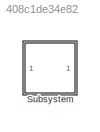
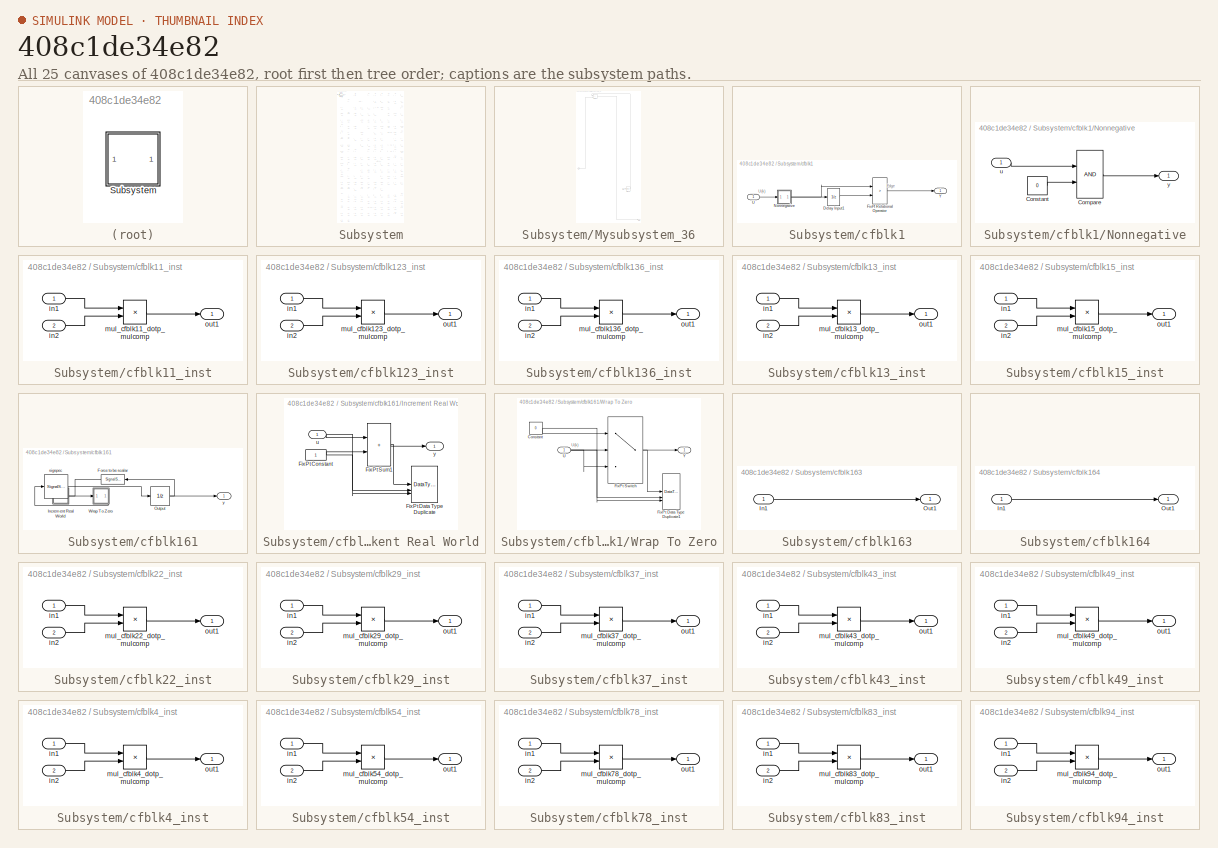
[diagram: thumbnail index - all 25 canvases of the model, root first then tree order]
MODEL slx_408c1de34e82
KIND model
CONFIG AbsTol = auto
CONFIG EnableMultiTasking = off
CONFIG FixedStep = auto
CONFIG MaxStep = auto
CONFIG MinStep = auto
CONFIG RelTol = 1e-3
CONFIG SampleTimeConstraint = Unconstrained
CONFIG SolverName = VariableStepAuto
CONFIG StartTime = 0.0
CONFIG StopTime = 10.0
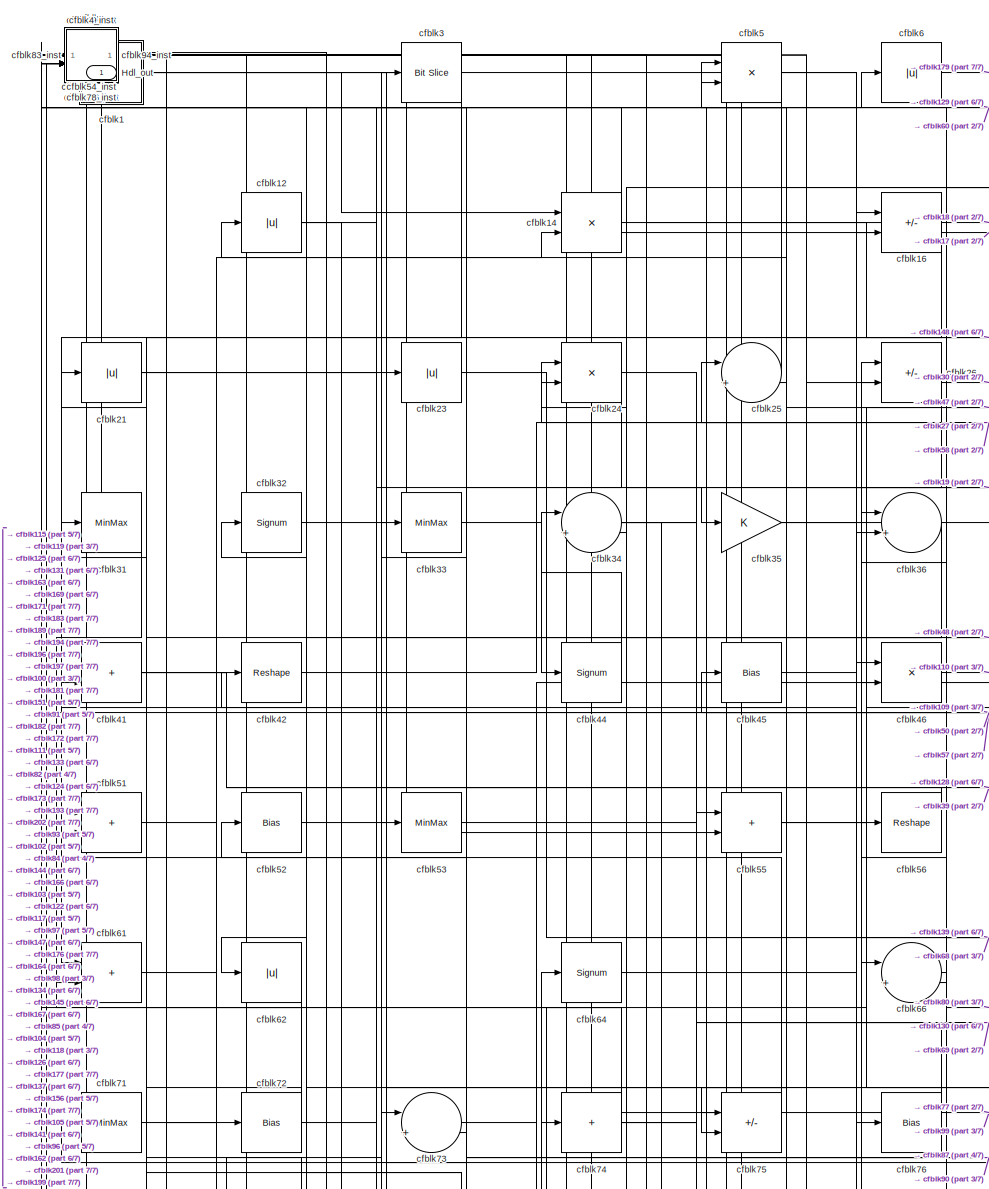
[diagram: Subsystem - part 1/7, top left region]
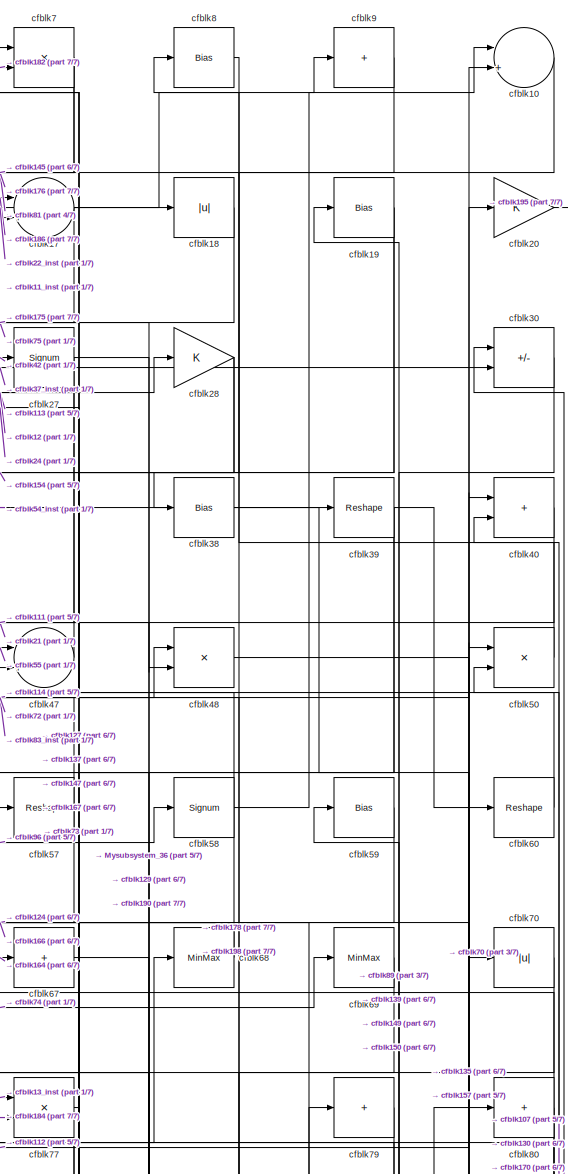
[diagram: Subsystem - part 2/7, top right region]
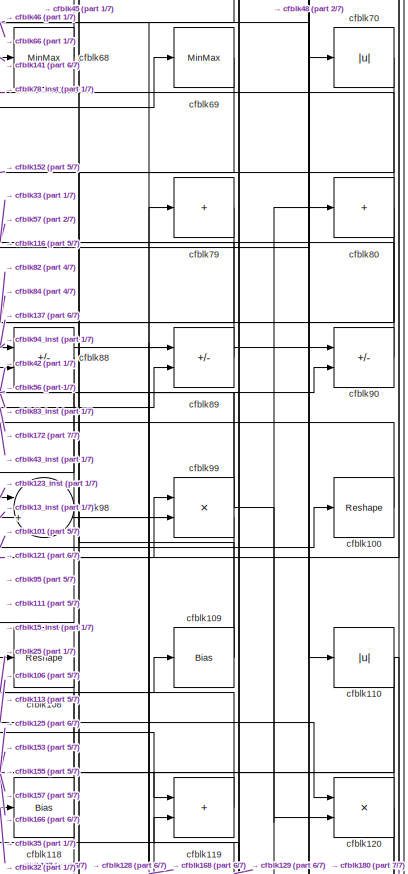
[diagram: Subsystem - part 3/7, middle right region]
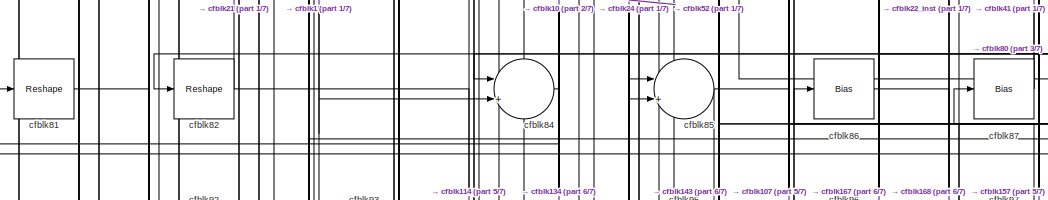
[diagram: Subsystem - part 4/7, central region]
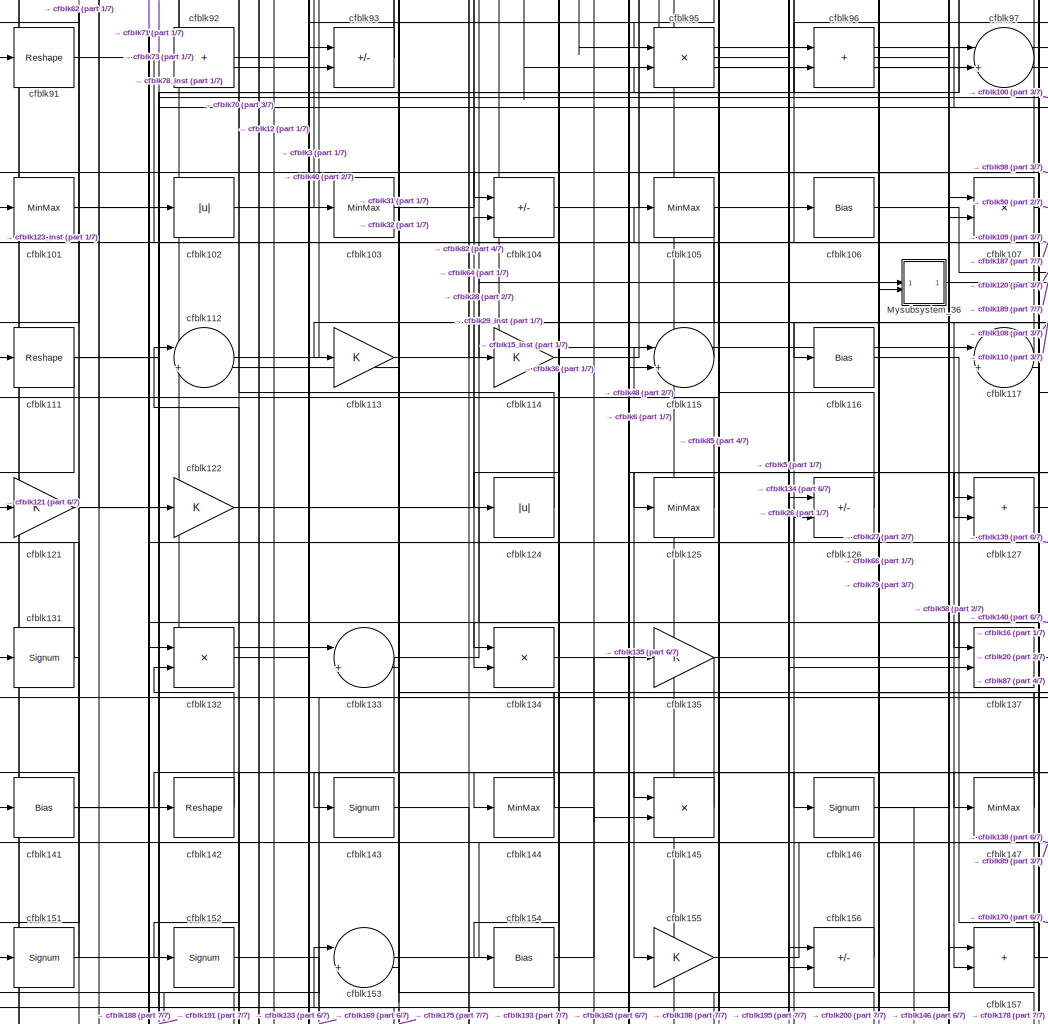
[diagram: Subsystem - part 5/7, central region]
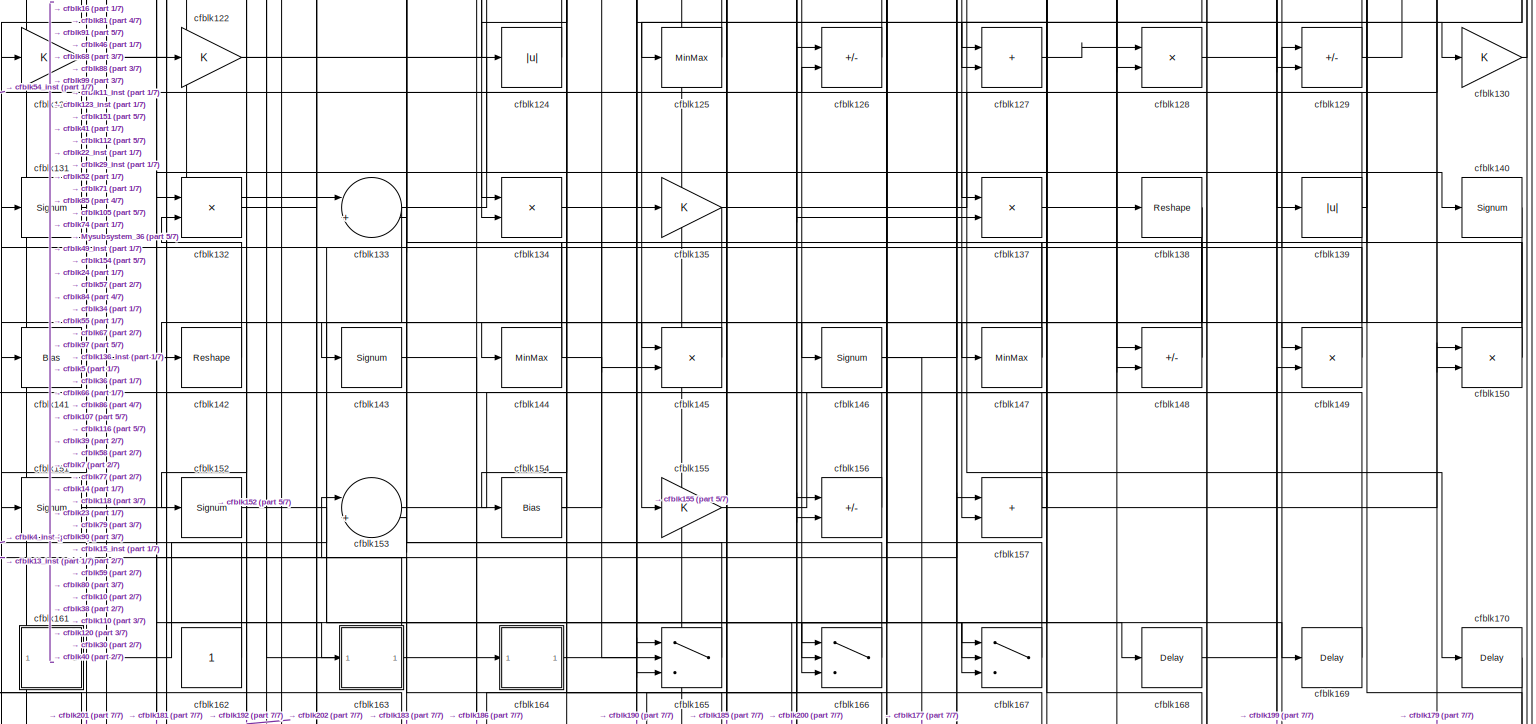
[diagram: Subsystem - part 6/7, full width, bottom band]
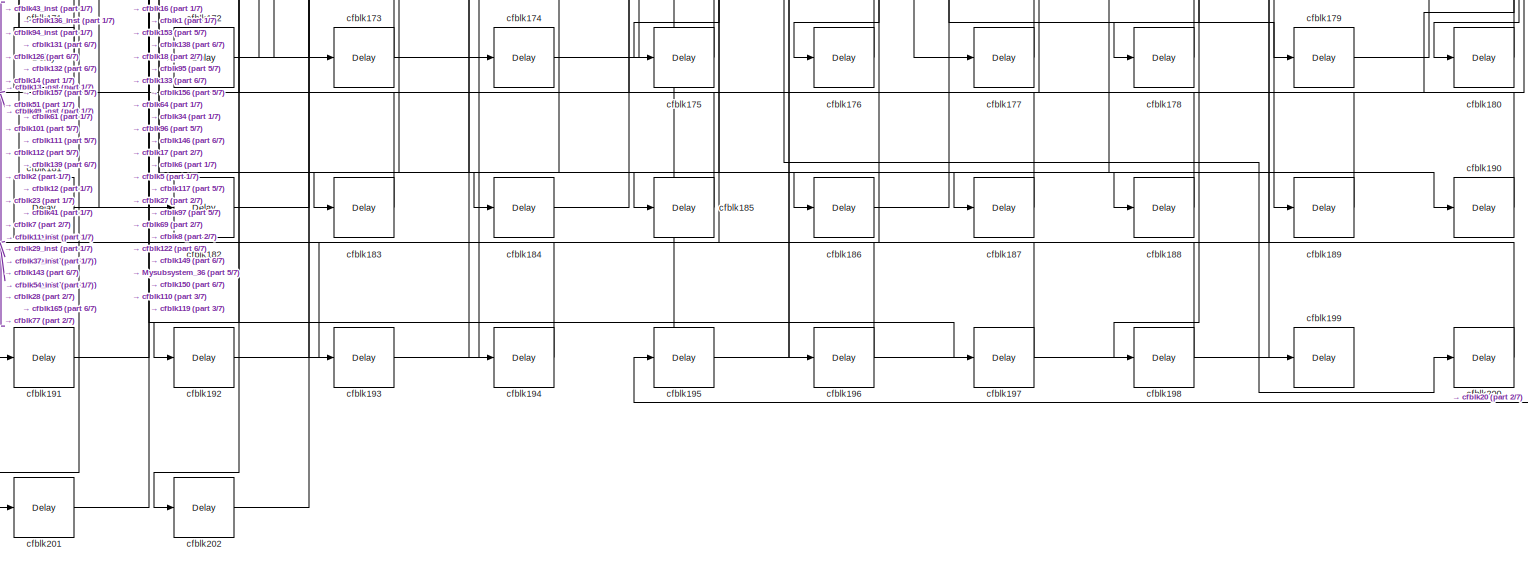
[diagram: Subsystem - part 7/7, full width, bottom band]
BLOCK [SubSystem] Subsystem
BLOCK [Outport] Subsystem/Hdl_out
  OutDataTypeStr = uint8
  SampleTime = 1
BLOCK [SubSystem] Subsystem/Mysubsystem_36
BLOCK [Inport] Subsystem/Mysubsystem_36/In1
  OutDataTypeStr = uint8
  PortDimensions = 1
  SampleTime = 1
BLOCK [Inport] Subsystem/Mysubsystem_36/In2
  OutDataTypeStr = uint8
  Port = 2
  PortDimensions = 1
  SampleTime = 1
BLOCK [Outport] Subsystem/Mysubsystem_36/Out1
  SampleTime = 1
BLOCK [MinMax] Subsystem/Mysubsystem_36/cfblk158
BLOCK [Sum] Subsystem/Mysubsystem_36/cfblk65
  IconShape = rectangular
BLOCK [SubSystem] Subsystem/cfblk1
BLOCK [UnitDelay] Subsystem/cfblk1/Delay Input1
  Description = Store in Global RAM
  DisableCoverage = on
  HasFrameUpgradeWarning = on
  InitialCondition = vinit
  SampleTime = -1
BLOCK [RelationalOperator] Subsystem/cfblk1/FixPt Relational Operator
  InputSameDT = off
  Operator = >
  OutDataTypeStr = fixdt(0, 8)
  ZeroCross = off
BLOCK [SubSystem] Subsystem/cfblk1/Nonnegative
BLOCK [RelationalOperator] Subsystem/cfblk1/Nonnegative/Compare
  OutDataTypeStr = boolean
  ZeroCross = off
BLOCK [Constant] Subsystem/cfblk1/Nonnegative/Constant
  DisableCoverage = on
  OutDataTypeStr = Inherit: Inherit via back propagation
  PreserveConstantTs = on
  SampleTime = -1
  Value = 0
BLOCK [Inport] Subsystem/cfblk1/Nonnegative/u
  OutDataTypeStr = uint8
  SampleTime = 1
BLOCK [Outport] Subsystem/cfblk1/Nonnegative/y
  SampleTime = 1
BLOCK [Inport] Subsystem/cfblk1/U
  OutDataTypeStr = uint8
  SampleTime = 1
BLOCK [Outport] Subsystem/cfblk1/Y
  SampleTime = 1
BLOCK [Sum] Subsystem/cfblk10
  Inputs = |++
  OutDataTypeStr = uint8
BLOCK [Reshape] Subsystem/cfblk100
BLOCK [MinMax] Subsystem/cfblk101
  OutDataTypeStr = uint8
BLOCK [Abs] Subsystem/cfblk102
  OutDataTypeStr = uint8
  SaturateOnIntegerOverflow = off
BLOCK [MinMax] Subsystem/cfblk103
  OutDataTypeStr = uint8
BLOCK [Sum] Subsystem/cfblk104
  IconShape = rectangular
  Inputs = +-
  OutDataTypeStr = uint8
BLOCK [MinMax] Subsystem/cfblk105
  OutDataTypeStr = uint8
BLOCK [Bias] Subsystem/cfblk106
  Bias = 0.0
  SaturateOnIntegerOverflow = off
BLOCK [Product] Subsystem/cfblk107
  Inputs = */
  OutDataTypeStr = uint8
  RndMeth = Zero
  SaturateOnIntegerOverflow = on
BLOCK [Reshape] Subsystem/cfblk108
BLOCK [Bias] Subsystem/cfblk109
  Bias = 0.0
  SaturateOnIntegerOverflow = off
BLOCK [Abs] Subsystem/cfblk110
  OutDataTypeStr = uint8
  SaturateOnIntegerOverflow = off
BLOCK [Reshape] Subsystem/cfblk111
BLOCK [Sum] Subsystem/cfblk112
  Inputs = |++
  OutDataTypeStr = uint8
BLOCK [Gain] Subsystem/cfblk113
  OutDataTypeStr = uint8
BLOCK [Gain] Subsystem/cfblk114
  OutDataTypeStr = uint8
BLOCK [Sum] Subsystem/cfblk115
  Inputs = |++
  OutDataTypeStr = uint8
BLOCK [Bias] Subsystem/cfblk116
  Bias = 0.0
  SaturateOnIntegerOverflow = off
BLOCK [Sum] Subsystem/cfblk117
  Inputs = |++
  OutDataTypeStr = uint8
BLOCK [Bias] Subsystem/cfblk118
  Bias = 0.0
  SaturateOnIntegerOverflow = off
BLOCK [Sum] Subsystem/cfblk119
  IconShape = rectangular
  OutDataTypeStr = uint8
BLOCK [SubSystem] Subsystem/cfblk11_inst
BLOCK [Inport] Subsystem/cfblk11_inst/in1
  OutDataTypeStr = uint8
  SampleTime = 1
BLOCK [Inport] Subsystem/cfblk11_inst/in2
  OutDataTypeStr = uint8
  Port = 2
  SampleTime = 1
BLOCK [Product] Subsystem/cfblk11_inst/mul_cfblk11_dotp_mulcomp
  Inputs = **
  OutDataTypeStr = uint8
  SampleTime = 1
BLOCK [Outport] Subsystem/cfblk11_inst/out1
  OutDataTypeStr = uint8
  SampleTime = 1
BLOCK [Abs] Subsystem/cfblk12
  OutDataTypeStr = uint8
  SaturateOnIntegerOverflow = off
BLOCK [Product] Subsystem/cfblk120
  Inputs = */
  OutDataTypeStr = uint8
  RndMeth = Zero
  SaturateOnIntegerOverflow = on
BLOCK [Gain] Subsystem/cfblk121
  OutDataTypeStr = uint8
BLOCK [Gain] Subsystem/cfblk122
  OutDataTypeStr = uint8
BLOCK [SubSystem] Subsystem/cfblk123_inst
BLOCK [Inport] Subsystem/cfblk123_inst/in1
  OutDataTypeStr = uint8
  SampleTime = 1
BLOCK [Inport] Subsystem/cfblk123_inst/in2
  OutDataTypeStr = uint8
  Port = 2
  SampleTime = 1
BLOCK [Product] Subsystem/cfblk123_inst/mul_cfblk123_dotp_mulcomp
  Inputs = **
  OutDataTypeStr = uint8
  SampleTime = 1
BLOCK [Outport] Subsystem/cfblk123_inst/out1
  OutDataTypeStr = uint8
  SampleTime = 1
BLOCK [Abs] Subsystem/cfblk124
  OutDataTypeStr = uint8
  SaturateOnIntegerOverflow = off
BLOCK [MinMax] Subsystem/cfblk125
  OutDataTypeStr = uint8
BLOCK [Sum] Subsystem/cfblk126
  IconShape = rectangular
  Inputs = +-
  OutDataTypeStr = uint8
BLOCK [Sum] Subsystem/cfblk127
  IconShape = rectangular
  OutDataTypeStr = uint8
BLOCK [Product] Subsystem/cfblk128
  Inputs = */
  OutDataTypeStr = uint8
  RndMeth = Zero
  SaturateOnIntegerOverflow = on
BLOCK [Sum] Subsystem/cfblk129
  IconShape = rectangular
  Inputs = +-
  OutDataTypeStr = uint8
BLOCK [Gain] Subsystem/cfblk130
  OutDataTypeStr = uint8
BLOCK [Signum] Subsystem/cfblk131
BLOCK [Product] Subsystem/cfblk132
  Inputs = */
  OutDataTypeStr = uint8
  RndMeth = Zero
  SaturateOnIntegerOverflow = on
BLOCK [Sum] Subsystem/cfblk133
  Inputs = |++
  OutDataTypeStr = uint8
BLOCK [Product] Subsystem/cfblk134
  Inputs = */
  OutDataTypeStr = uint8
  RndMeth = Zero
  SaturateOnIntegerOverflow = on
BLOCK [Gain] Subsystem/cfblk135
  OutDataTypeStr = uint8
BLOCK [SubSystem] Subsystem/cfblk136_inst
BLOCK [Inport] Subsystem/cfblk136_inst/in1
  OutDataTypeStr = uint8
  SampleTime = 1
BLOCK [Inport] Subsystem/cfblk136_inst/in2
  OutDataTypeStr = uint8
  Port = 2
  SampleTime = 1
BLOCK [Product] Subsystem/cfblk136_inst/mul_cfblk136_dotp_mulcomp
  Inputs = **
  OutDataTypeStr = uint8
  SampleTime = 1
BLOCK [Outport] Subsystem/cfblk136_inst/out1
  OutDataTypeStr = uint8
  SampleTime = 1
BLOCK [Product] Subsystem/cfblk137
  Inputs = */
  OutDataTypeStr = uint8
  RndMeth = Zero
  SaturateOnIntegerOverflow = on
BLOCK [Reshape] Subsystem/cfblk138
BLOCK [Abs] Subsystem/cfblk139
  OutDataTypeStr = uint8
  SaturateOnIntegerOverflow = off
BLOCK [SubSystem] Subsystem/cfblk13_inst
BLOCK [Inport] Subsystem/cfblk13_inst/in1
  OutDataTypeStr = uint8
  SampleTime = 1
BLOCK [Inport] Subsystem/cfblk13_inst/in2
  OutDataTypeStr = uint8
  Port = 2
  SampleTime = 1
BLOCK [Product] Subsystem/cfblk13_inst/mul_cfblk13_dotp_mulcomp
  Inputs = **
  OutDataTypeStr = uint8
  SampleTime = 1
BLOCK [Outport] Subsystem/cfblk13_inst/out1
  OutDataTypeStr = uint8
  SampleTime = 1
BLOCK [Product] Subsystem/cfblk14
  Inputs = */
  OutDataTypeStr = uint8
  RndMeth = Zero
  SaturateOnIntegerOverflow = on
BLOCK [Signum] Subsystem/cfblk140
BLOCK [Bias] Subsystem/cfblk141
  Bias = 0.0
  SaturateOnIntegerOverflow = off
BLOCK [Reshape] Subsystem/cfblk142
BLOCK [Signum] Subsystem/cfblk143
BLOCK [MinMax] Subsystem/cfblk144
  OutDataTypeStr = uint8
BLOCK [Product] Subsystem/cfblk145
  Inputs = */
  OutDataTypeStr = uint8
  RndMeth = Zero
  SaturateOnIntegerOverflow = on
BLOCK [Signum] Subsystem/cfblk146
BLOCK [MinMax] Subsystem/cfblk147
  OutDataTypeStr = uint8
BLOCK [Sum] Subsystem/cfblk148
  IconShape = rectangular
  Inputs = +-
  OutDataTypeStr = uint8
BLOCK [Product] Subsystem/cfblk149
  Inputs = */
  OutDataTypeStr = uint8
  RndMeth = Zero
  SaturateOnIntegerOverflow = on
BLOCK [Product] Subsystem/cfblk150
  Inputs = */
  OutDataTypeStr = uint8
  RndMeth = Zero
  SaturateOnIntegerOverflow = on
BLOCK [Signum] Subsystem/cfblk151
BLOCK [Signum] Subsystem/cfblk152
BLOCK [Sum] Subsystem/cfblk153
  Inputs = |++
  OutDataTypeStr = uint8
BLOCK [Bias] Subsystem/cfblk154
  Bias = 0.0
  SaturateOnIntegerOverflow = off
BLOCK [Gain] Subsystem/cfblk155
  OutDataTypeStr = uint8
BLOCK [Sum] Subsystem/cfblk156
  IconShape = rectangular
  Inputs = +-
  OutDataTypeStr = uint8
BLOCK [Sum] Subsystem/cfblk157
  IconShape = rectangular
  OutDataTypeStr = uint8
BLOCK [SubSystem] Subsystem/cfblk15_inst
BLOCK [Inport] Subsystem/cfblk15_inst/in1
  OutDataTypeStr = uint8
  SampleTime = 1
BLOCK [Inport] Subsystem/cfblk15_inst/in2
  OutDataTypeStr = uint8
  Port = 2
  SampleTime = 1
BLOCK [Product] Subsystem/cfblk15_inst/mul_cfblk15_dotp_mulcomp
  Inputs = **
  OutDataTypeStr = uint8
  SampleTime = 1
BLOCK [Outport] Subsystem/cfblk15_inst/out1
  OutDataTypeStr = uint8
  SampleTime = 1
BLOCK [Sum] Subsystem/cfblk16
  IconShape = rectangular
  Inputs = +-
  OutDataTypeStr = uint8
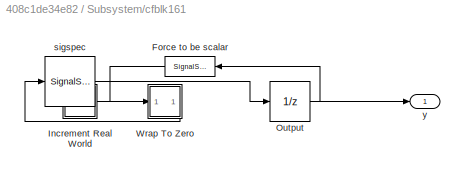
BLOCK [SubSystem] Subsystem/cfblk161
BLOCK [SignalSpecification] Subsystem/cfblk161/Force to be scalar
  Dimensions = 1
  DisableCoverage = on
BLOCK [SubSystem] Subsystem/cfblk161/Increment Real World
BLOCK [Constant] Subsystem/cfblk161/Increment Real World/FixPt Constant
  DisableCoverage = on
  OutDataTypeStr = Inherit: Inherit via back propagation
  SampleTime = -1
BLOCK [DataTypeDuplicate] Subsystem/cfblk161/Increment Real World/FixPt Data Type Duplicate
  DisableCoverage = on
  NumInputPorts = 3
BLOCK [Sum] Subsystem/cfblk161/Increment Real World/FixPt Sum1
  IconShape = rectangular
  InputSameDT = on
  LockScale = on
  OutDataTypeStr = Inherit: Inherit via back propagation
BLOCK [Inport] Subsystem/cfblk161/Increment Real World/u
  OutDataTypeStr = uint16
  SampleTime = 1
BLOCK [Outport] Subsystem/cfblk161/Increment Real World/y
  SampleTime = 1
BLOCK [UnitDelay] Subsystem/cfblk161/Output
  HasFrameUpgradeWarning = on
  InitialCondition = 0.0
  SampleTime = tsamp
BLOCK [SubSystem] Subsystem/cfblk161/Wrap To Zero
BLOCK [Constant] Subsystem/cfblk161/Wrap To Zero/Constant
  DisableCoverage = on
  OutDataTypeStr = Inherit: Inherit via back propagation
  SampleTime = -1
  Value = 0
BLOCK [DataTypeDuplicate] Subsystem/cfblk161/Wrap To Zero/FixPt Data Type Duplicate1
  DisableCoverage = on
  NumInputPorts = 3
BLOCK [Switch] Subsystem/cfblk161/Wrap To Zero/FixPt Switch
  Criteria = u2 > Threshold
  InputSameDT = off
  OutDataTypeStr = Inherit: Inherit via back propagation
  SaturateOnIntegerOverflow = off
  Threshold = Threshold
  ZeroCross = off
BLOCK [Inport] Subsystem/cfblk161/Wrap To Zero/U
  OutDataTypeStr = uint16
  SampleTime = 1
BLOCK [Outport] Subsystem/cfblk161/Wrap To Zero/Y
  SampleTime = 1
BLOCK [SignalSpecification] Subsystem/cfblk161/sigspec
  Dimensions = 1
  OutDataTypeStr = uint16
BLOCK [Outport] Subsystem/cfblk161/y
  SampleTime = 1
BLOCK [Constant] Subsystem/cfblk162
  OutDataTypeStr = uint8
  SampleTime = -1
BLOCK [SubSystem] Subsystem/cfblk163
BLOCK [Inport] Subsystem/cfblk163/In1
  OutDataTypeStr = uint8
  PortDimensions = 1
  SampleTime = 1
BLOCK [Outport] Subsystem/cfblk163/Out1
  SampleTime = 1
BLOCK [SubSystem] Subsystem/cfblk164
BLOCK [Inport] Subsystem/cfblk164/In1
  OutDataTypeStr = uint8
  PortDimensions = 1
  SampleTime = 1
BLOCK [Outport] Subsystem/cfblk164/Out1
  SampleTime = 1
BLOCK [Switch] Subsystem/cfblk165
  InputSameDT = off
  OutDataTypeStr = uint8
  SaturateOnIntegerOverflow = off
BLOCK [Switch] Subsystem/cfblk166
  InputSameDT = off
  OutDataTypeStr = uint8
  SaturateOnIntegerOverflow = off
BLOCK [Switch] Subsystem/cfblk167
  InputSameDT = off
  OutDataTypeStr = uint8
  SaturateOnIntegerOverflow = off
BLOCK [Delay] Subsystem/cfblk168
  InputPortMap = u0
  SampleTime = 1
BLOCK [Delay] Subsystem/cfblk169
  InputPortMap = u0
  SampleTime = 1
BLOCK [Sum] Subsystem/cfblk17
  Inputs = |++
  OutDataTypeStr = uint8
BLOCK [Delay] Subsystem/cfblk170
  InputPortMap = u0
  SampleTime = 1
BLOCK [Delay] Subsystem/cfblk171
  InputPortMap = u0
  SampleTime = 1
BLOCK [Delay] Subsystem/cfblk172
  InputPortMap = u0
  SampleTime = 1
BLOCK [Delay] Subsystem/cfblk173
  InputPortMap = u0
  SampleTime = 1
BLOCK [Delay] Subsystem/cfblk174
  InputPortMap = u0
  SampleTime = 1
BLOCK [Delay] Subsystem/cfblk175
  InputPortMap = u0
  SampleTime = 1
BLOCK [Delay] Subsystem/cfblk176
  InputPortMap = u0
  SampleTime = 1
BLOCK [Delay] Subsystem/cfblk177
  InputPortMap = u0
  SampleTime = 1
BLOCK [Delay] Subsystem/cfblk178
  InputPortMap = u0
  SampleTime = 1
BLOCK [Delay] Subsystem/cfblk179
  InputPortMap = u0
  SampleTime = 1
BLOCK [Abs] Subsystem/cfblk18
  OutDataTypeStr = uint8
  SaturateOnIntegerOverflow = off
BLOCK [Delay] Subsystem/cfblk180
  InputPortMap = u0
  SampleTime = 1
BLOCK [Delay] Subsystem/cfblk181
  InputPortMap = u0
  SampleTime = 1
BLOCK [Delay] Subsystem/cfblk182
  InputPortMap = u0
  SampleTime = 1
BLOCK [Delay] Subsystem/cfblk183
  InputPortMap = u0
  SampleTime = 1
BLOCK [Delay] Subsystem/cfblk184
  InputPortMap = u0
  SampleTime = 1
BLOCK [Delay] Subsystem/cfblk185
  InputPortMap = u0
  SampleTime = 1
BLOCK [Delay] Subsystem/cfblk186
  InputPortMap = u0
  SampleTime = 1
BLOCK [Delay] Subsystem/cfblk187
  InputPortMap = u0
  SampleTime = 1
BLOCK [Delay] Subsystem/cfblk188
  InputPortMap = u0
  SampleTime = 1
BLOCK [Delay] Subsystem/cfblk189
  InputPortMap = u0
  SampleTime = 1
BLOCK [Bias] Subsystem/cfblk19
  Bias = 0.0
  SaturateOnIntegerOverflow = off
BLOCK [Delay] Subsystem/cfblk190
  InputPortMap = u0
  SampleTime = 1
BLOCK [Delay] Subsystem/cfblk191
  InputPortMap = u0
  SampleTime = 1
BLOCK [Delay] Subsystem/cfblk192
  InputPortMap = u0
  SampleTime = 1
BLOCK [Delay] Subsystem/cfblk193
  InputPortMap = u0
  SampleTime = 1
BLOCK [Delay] Subsystem/cfblk194
  InputPortMap = u0
  SampleTime = 1
BLOCK [Delay] Subsystem/cfblk195
  InputPortMap = u0
  SampleTime = 1
BLOCK [Delay] Subsystem/cfblk196
  InputPortMap = u0
  SampleTime = 1
BLOCK [Delay] Subsystem/cfblk197
  InputPortMap = u0
  SampleTime = 1
BLOCK [Delay] Subsystem/cfblk198
  InputPortMap = u0
  SampleTime = 1
BLOCK [Delay] Subsystem/cfblk199
  InputPortMap = u0
  SampleTime = 1
BLOCK [Constant] Subsystem/cfblk2
  OutDataTypeStr = uint8
  SampleTime = 1
  Value = 0
BLOCK [Gain] Subsystem/cfblk20
  OutDataTypeStr = uint8
BLOCK [Delay] Subsystem/cfblk200
  InputPortMap = u0
  SampleTime = 1
BLOCK [Delay] Subsystem/cfblk201
  InputPortMap = u0
  SampleTime = 1
BLOCK [Delay] Subsystem/cfblk202
  InputPortMap = u0
  SampleTime = 1
BLOCK [Abs] Subsystem/cfblk21
  OutDataTypeStr = uint8
  SaturateOnIntegerOverflow = off
BLOCK [SubSystem] Subsystem/cfblk22_inst
BLOCK [Inport] Subsystem/cfblk22_inst/in1
  OutDataTypeStr = uint8
  SampleTime = 1
BLOCK [Inport] Subsystem/cfblk22_inst/in2
  OutDataTypeStr = uint8
  Port = 2
  SampleTime = 1
BLOCK [Product] Subsystem/cfblk22_inst/mul_cfblk22_dotp_mulcomp
  Inputs = **
  OutDataTypeStr = uint8
  SampleTime = 1
BLOCK [Outport] Subsystem/cfblk22_inst/out1
  OutDataTypeStr = uint8
  SampleTime = 1
BLOCK [Abs] Subsystem/cfblk23
  OutDataTypeStr = uint8
  SaturateOnIntegerOverflow = off
BLOCK [Product] Subsystem/cfblk24
  Inputs = */
  OutDataTypeStr = uint8
  RndMeth = Zero
  SaturateOnIntegerOverflow = on
BLOCK [Sum] Subsystem/cfblk25
  Inputs = |++
  OutDataTypeStr = uint8
BLOCK [Sum] Subsystem/cfblk26
  IconShape = rectangular
  Inputs = +-
  OutDataTypeStr = uint8
BLOCK [Signum] Subsystem/cfblk27
BLOCK [Gain] Subsystem/cfblk28
  OutDataTypeStr = uint8
BLOCK [SubSystem] Subsystem/cfblk29_inst
BLOCK [Inport] Subsystem/cfblk29_inst/in1
  OutDataTypeStr = uint8
  SampleTime = 1
BLOCK [Inport] Subsystem/cfblk29_inst/in2
  OutDataTypeStr = uint8
  Port = 2
  SampleTime = 1
BLOCK [Product] Subsystem/cfblk29_inst/mul_cfblk29_dotp_mulcomp
  Inputs = **
  OutDataTypeStr = uint8
  SampleTime = 1
BLOCK [Outport] Subsystem/cfblk29_inst/out1
  OutDataTypeStr = uint8
  SampleTime = 1
BLOCK [Reference] Subsystem/cfblk3  REF=hdlsllib/Logic and Bit
Operations/Bit Slice
  SourceBlock = hdlsllib/Logic and Bit\nOperations/Bit Slice
  SourceType = Bit Slice
BLOCK [Sum] Subsystem/cfblk30
  IconShape = rectangular
  Inputs = +-
  OutDataTypeStr = uint8
BLOCK [MinMax] Subsystem/cfblk31
  OutDataTypeStr = uint8
BLOCK [Signum] Subsystem/cfblk32
BLOCK [MinMax] Subsystem/cfblk33
  OutDataTypeStr = uint8
BLOCK [Sum] Subsystem/cfblk34
  Inputs = |++
  OutDataTypeStr = uint8
BLOCK [Gain] Subsystem/cfblk35
  OutDataTypeStr = uint8
BLOCK [Sum] Subsystem/cfblk36
  Inputs = |++
  OutDataTypeStr = uint8
BLOCK [SubSystem] Subsystem/cfblk37_inst
BLOCK [Inport] Subsystem/cfblk37_inst/in1
  OutDataTypeStr = uint8
  SampleTime = 1
BLOCK [Inport] Subsystem/cfblk37_inst/in2
  OutDataTypeStr = uint8
  Port = 2
  SampleTime = 1
BLOCK [Product] Subsystem/cfblk37_inst/mul_cfblk37_dotp_mulcomp
  Inputs = **
  OutDataTypeStr = uint8
  SampleTime = 1
BLOCK [Outport] Subsystem/cfblk37_inst/out1
  OutDataTypeStr = uint8
  SampleTime = 1
BLOCK [Bias] Subsystem/cfblk38
  Bias = 0.0
  SaturateOnIntegerOverflow = off
BLOCK [Reshape] Subsystem/cfblk39
BLOCK [Sum] Subsystem/cfblk40
  IconShape = rectangular
  OutDataTypeStr = uint8
BLOCK [Sum] Subsystem/cfblk41
  IconShape = rectangular
  OutDataTypeStr = uint8
BLOCK [Reshape] Subsystem/cfblk42
BLOCK [SubSystem] Subsystem/cfblk43_inst
BLOCK [Inport] Subsystem/cfblk43_inst/in1
  OutDataTypeStr = uint8
  SampleTime = 1
BLOCK [Inport] Subsystem/cfblk43_inst/in2
  OutDataTypeStr = uint8
  Port = 2
  SampleTime = 1
BLOCK [Product] Subsystem/cfblk43_inst/mul_cfblk43_dotp_mulcomp
  Inputs = **
  OutDataTypeStr = uint8
  SampleTime = 1
BLOCK [Outport] Subsystem/cfblk43_inst/out1
  OutDataTypeStr = uint8
  SampleTime = 1
BLOCK [Signum] Subsystem/cfblk44
BLOCK [Bias] Subsystem/cfblk45
  Bias = 0.0
  SaturateOnIntegerOverflow = off
BLOCK [Product] Subsystem/cfblk46
  Inputs = */
  OutDataTypeStr = uint8
  RndMeth = Zero
  SaturateOnIntegerOverflow = on
BLOCK [Sum] Subsystem/cfblk47
  Inputs = |++
  OutDataTypeStr = uint8
BLOCK [Product] Subsystem/cfblk48
  Inputs = */
  OutDataTypeStr = uint8
  RndMeth = Zero
  SaturateOnIntegerOverflow = on
BLOCK [SubSystem] Subsystem/cfblk49_inst
BLOCK [Inport] Subsystem/cfblk49_inst/in1
  OutDataTypeStr = uint8
  SampleTime = 1
BLOCK [Inport] Subsystem/cfblk49_inst/in2
  OutDataTypeStr = uint8
  Port = 2
  SampleTime = 1
BLOCK [Product] Subsystem/cfblk49_inst/mul_cfblk49_dotp_mulcomp
  Inputs = **
  OutDataTypeStr = uint8
  SampleTime = 1
BLOCK [Outport] Subsystem/cfblk49_inst/out1
  OutDataTypeStr = uint8
  SampleTime = 1
BLOCK [SubSystem] Subsystem/cfblk4_inst
BLOCK [Inport] Subsystem/cfblk4_inst/in1
  OutDataTypeStr = uint8
  SampleTime = 1
BLOCK [Inport] Subsystem/cfblk4_inst/in2
  OutDataTypeStr = uint8
  Port = 2
  SampleTime = 1
BLOCK [Product] Subsystem/cfblk4_inst/mul_cfblk4_dotp_mulcomp
  Inputs = **
  OutDataTypeStr = uint8
  SampleTime = 1
BLOCK [Outport] Subsystem/cfblk4_inst/out1
  OutDataTypeStr = uint8
  SampleTime = 1
BLOCK [Product] Subsystem/cfblk5
  Inputs = */
  OutDataTypeStr = uint8
  RndMeth = Zero
  SaturateOnIntegerOverflow = on
BLOCK [Product] Subsystem/cfblk50
  Inputs = */
  OutDataTypeStr = uint8
  RndMeth = Zero
  SaturateOnIntegerOverflow = on
BLOCK [Sum] Subsystem/cfblk51
  IconShape = rectangular
  OutDataTypeStr = uint8
BLOCK [Bias] Subsystem/cfblk52
  Bias = 0.0
  SaturateOnIntegerOverflow = off
BLOCK [MinMax] Subsystem/cfblk53
  OutDataTypeStr = uint8
BLOCK [SubSystem] Subsystem/cfblk54_inst
BLOCK [Inport] Subsystem/cfblk54_inst/in1
  OutDataTypeStr = uint8
  SampleTime = 1
BLOCK [Inport] Subsystem/cfblk54_inst/in2
  OutDataTypeStr = uint8
  Port = 2
  SampleTime = 1
BLOCK [Product] Subsystem/cfblk54_inst/mul_cfblk54_dotp_mulcomp
  Inputs = **
  OutDataTypeStr = uint8
  SampleTime = 1
BLOCK [Outport] Subsystem/cfblk54_inst/out1
  OutDataTypeStr = uint8
  SampleTime = 1
BLOCK [Sum] Subsystem/cfblk55
  IconShape = rectangular
  OutDataTypeStr = uint8
BLOCK [Reshape] Subsystem/cfblk56
BLOCK [Reshape] Subsystem/cfblk57
BLOCK [Signum] Subsystem/cfblk58
BLOCK [Bias] Subsystem/cfblk59
  Bias = 0.0
  SaturateOnIntegerOverflow = off
BLOCK [Abs] Subsystem/cfblk6
  OutDataTypeStr = uint8
  SaturateOnIntegerOverflow = off
BLOCK [Reshape] Subsystem/cfblk60
BLOCK [Sum] Subsystem/cfblk61
  IconShape = rectangular
  OutDataTypeStr = uint8
BLOCK [Abs] Subsystem/cfblk62
  OutDataTypeStr = uint8
  SaturateOnIntegerOverflow = off
BLOCK [Signum] Subsystem/cfblk64
BLOCK [Sum] Subsystem/cfblk66
  Inputs = |++
  OutDataTypeStr = uint8
BLOCK [Sum] Subsystem/cfblk67
  IconShape = rectangular
  Inputs = +
  OutDataTypeStr = uint8
BLOCK [MinMax] Subsystem/cfblk68
  OutDataTypeStr = uint8
BLOCK [MinMax] Subsystem/cfblk69
  OutDataTypeStr = uint8
BLOCK [Product] Subsystem/cfblk7
  Inputs = */
  OutDataTypeStr = uint8
  RndMeth = Zero
  SaturateOnIntegerOverflow = on
BLOCK [Abs] Subsystem/cfblk70
  OutDataTypeStr = uint8
  SaturateOnIntegerOverflow = off
BLOCK [MinMax] Subsystem/cfblk71
  OutDataTypeStr = uint8
BLOCK [Bias] Subsystem/cfblk72
  Bias = 0.0
  SaturateOnIntegerOverflow = off
BLOCK [Sum] Subsystem/cfblk73
  Inputs = |++
  OutDataTypeStr = uint8
BLOCK [Sum] Subsystem/cfblk74
  IconShape = rectangular
  Inputs = +
  OutDataTypeStr = uint8
BLOCK [Sum] Subsystem/cfblk75
  IconShape = rectangular
  Inputs = +-
  OutDataTypeStr = uint8
BLOCK [Bias] Subsystem/cfblk76
  Bias = 0.0
  SaturateOnIntegerOverflow = off
BLOCK [Product] Subsystem/cfblk77
  Inputs = */
  OutDataTypeStr = uint8
  RndMeth = Zero
  SaturateOnIntegerOverflow = on
BLOCK [SubSystem] Subsystem/cfblk78_inst
BLOCK [Inport] Subsystem/cfblk78_inst/in1
  OutDataTypeStr = uint8
  SampleTime = 1
BLOCK [Inport] Subsystem/cfblk78_inst/in2
  OutDataTypeStr = uint8
  Port = 2
  SampleTime = 1
BLOCK [Product] Subsystem/cfblk78_inst/mul_cfblk78_dotp_mulcomp
  Inputs = **
  OutDataTypeStr = uint8
  SampleTime = 1
BLOCK [Outport] Subsystem/cfblk78_inst/out1
  OutDataTypeStr = uint8
  SampleTime = 1
BLOCK [Sum] Subsystem/cfblk79
  IconShape = rectangular
  Inputs = +
  OutDataTypeStr = uint8
BLOCK [Bias] Subsystem/cfblk8
  Bias = 0.0
  SaturateOnIntegerOverflow = off
BLOCK [Sum] Subsystem/cfblk80
  IconShape = rectangular
  Inputs = +
  OutDataTypeStr = uint8
BLOCK [Reshape] Subsystem/cfblk81
BLOCK [Reshape] Subsystem/cfblk82
BLOCK [SubSystem] Subsystem/cfblk83_inst
BLOCK [Inport] Subsystem/cfblk83_inst/in1
  OutDataTypeStr = uint8
  SampleTime = 1
BLOCK [Inport] Subsystem/cfblk83_inst/in2
  OutDataTypeStr = uint8
  Port = 2
  SampleTime = 1
BLOCK [Product] Subsystem/cfblk83_inst/mul_cfblk83_dotp_mulcomp
  Inputs = **
  OutDataTypeStr = uint8
  SampleTime = 1
BLOCK [Outport] Subsystem/cfblk83_inst/out1
  OutDataTypeStr = uint8
  SampleTime = 1
BLOCK [Sum] Subsystem/cfblk84
  Inputs = |++
  OutDataTypeStr = uint8
BLOCK [Sum] Subsystem/cfblk85
  Inputs = |++
  OutDataTypeStr = uint8
BLOCK [Bias] Subsystem/cfblk86
  Bias = 0.0
  SaturateOnIntegerOverflow = off
BLOCK [Bias] Subsystem/cfblk87
  Bias = 0.0
  SaturateOnIntegerOverflow = off
BLOCK [Sum] Subsystem/cfblk88
  IconShape = rectangular
  Inputs = +-
  OutDataTypeStr = uint8
BLOCK [Sum] Subsystem/cfblk89
  IconShape = rectangular
  Inputs = +-
  OutDataTypeStr = uint8
BLOCK [Sum] Subsystem/cfblk9
  IconShape = rectangular
  Inputs = +
  OutDataTypeStr = uint8
BLOCK [Sum] Subsystem/cfblk90
  IconShape = rectangular
  Inputs = +-
  OutDataTypeStr = uint8
BLOCK [Reshape] Subsystem/cfblk91
BLOCK [Sum] Subsystem/cfblk92
  IconShape = rectangular
  Inputs = +
  OutDataTypeStr = uint8
BLOCK [Sum] Subsystem/cfblk93
  IconShape = rectangular
  Inputs = +-
  OutDataTypeStr = uint8
BLOCK [SubSystem] Subsystem/cfblk94_inst
BLOCK [Inport] Subsystem/cfblk94_inst/in1
  OutDataTypeStr = uint8
  SampleTime = 1
BLOCK [Inport] Subsystem/cfblk94_inst/in2
  OutDataTypeStr = uint8
  Port = 2
  SampleTime = 1
BLOCK [Product] Subsystem/cfblk94_inst/mul_cfblk94_dotp_mulcomp
  Inputs = **
  OutDataTypeStr = uint8
  SampleTime = 1
BLOCK [Outport] Subsystem/cfblk94_inst/out1
  OutDataTypeStr = uint8
  SampleTime = 1
BLOCK [Product] Subsystem/cfblk95
  Inputs = */
  OutDataTypeStr = uint8
  RndMeth = Zero
  SaturateOnIntegerOverflow = on
BLOCK [Sum] Subsystem/cfblk96
  IconShape = rectangular
  OutDataTypeStr = uint8
BLOCK [Sum] Subsystem/cfblk97
  Inputs = |++
  OutDataTypeStr = uint8
BLOCK [Sum] Subsystem/cfblk98
  Inputs = |++
  OutDataTypeStr = uint8
BLOCK [Product] Subsystem/cfblk99
  Inputs = */
  OutDataTypeStr = uint8
  RndMeth = Zero
  SaturateOnIntegerOverflow = on
ANNOTATION Subsystem/cfblk1: Edge
ANNOTATION Subsystem/cfblk1: U(k)
ANNOTATION Subsystem/cfblk161/Wrap To Zero: U(k)
LINE Subsystem/Mysubsystem_36/In1:1 -> Subsystem/Mysubsystem_36/cfblk65:2
LINE Subsystem/Mysubsystem_36/In2:1 -> Subsystem/Mysubsystem_36/cfblk158:1
LINE Subsystem/Mysubsystem_36/cfblk158:1 -> Subsystem/Mysubsystem_36/cfblk65:1
LINE Subsystem/Mysubsystem_36/cfblk65:1 -> Subsystem/Mysubsystem_36/Out1:1
LINE Subsystem/Mysubsystem_36:1 -> Subsystem/cfblk189:1
LINE Subsystem/cfblk100:1 -> Subsystem/cfblk43_inst:2
NET Subsystem/cfblk101:1 -> Subsystem/cfblk100:1, Subsystem/cfblk188:1
LINE Subsystem/cfblk102:1 -> Subsystem/cfblk3:1
LINE Subsystem/cfblk103:1 -> Subsystem/cfblk64:1
LINE Subsystem/cfblk104:1 -> Subsystem/cfblk6:1
NET Subsystem/cfblk105:1 -> Subsystem/cfblk134:2, Subsystem/cfblk26:1
LINE Subsystem/cfblk106:1 -> Subsystem/cfblk120:1
LINE Subsystem/cfblk107:1 -> Subsystem/cfblk50:2
LINE Subsystem/cfblk108:1 -> Subsystem/cfblk153:2
NET Subsystem/cfblk109:1 -> Subsystem/cfblk45:1, Subsystem/cfblk98:2
LINE Subsystem/cfblk10:1 -> Subsystem/cfblk81:1
NET Subsystem/cfblk110:1 -> Subsystem/cfblk157:2, Subsystem/cfblk166:3, Subsystem/cfblk180:1
NET Subsystem/cfblk111:1 -> Subsystem/cfblk109:1, Subsystem/cfblk187:1, Subsystem/cfblk191:1, Subsystem/cfblk73:1
LINE Subsystem/cfblk112:1 -> Subsystem/cfblk40:1
LINE Subsystem/cfblk113:1 -> Subsystem/cfblk28:1
LINE Subsystem/cfblk114:1 -> Subsystem/cfblk48:1
LINE Subsystem/cfblk115:1 -> Subsystem/cfblk123_inst:1
LINE Subsystem/cfblk116:1 -> Subsystem/cfblk170:1
LINE Subsystem/cfblk117:1 -> Subsystem/cfblk92:1
NET Subsystem/cfblk118:1 -> Subsystem/cfblk127:2, Subsystem/cfblk25:2
LINE Subsystem/cfblk119:1 -> Subsystem/cfblk15_inst:1
LINE Subsystem/cfblk11_inst/in1:1 -> Subsystem/cfblk11_inst/mul_cfblk11_dotp_mulcomp:1
LINE Subsystem/cfblk11_inst/in2:1 -> Subsystem/cfblk11_inst/mul_cfblk11_dotp_mulcomp:2
LINE Subsystem/cfblk11_inst/mul_cfblk11_dotp_mulcomp:1 -> Subsystem/cfblk11_inst/out1:1
NET Subsystem/cfblk11_inst:1 -> Subsystem/cfblk133:1, Subsystem/cfblk17:2
NET Subsystem/cfblk120:1 -> Subsystem/cfblk113:1, Subsystem/cfblk125:1, Subsystem/cfblk155:1
NET Subsystem/cfblk121:1 -> Subsystem/cfblk88:2, Subsystem/cfblk99:1
NET Subsystem/cfblk122:1 -> Subsystem/cfblk199:1, Subsystem/cfblk74:1
LINE Subsystem/cfblk123_inst/in1:1 -> Subsystem/cfblk123_inst/mul_cfblk123_dotp_mulcomp:1
LINE Subsystem/cfblk123_inst/in2:1 -> Subsystem/cfblk123_inst/mul_cfblk123_dotp_mulcomp:2
LINE Subsystem/cfblk123_inst/mul_cfblk123_dotp_mulcomp:1 -> Subsystem/cfblk123_inst/out1:1
NET Subsystem/cfblk123_inst:1 -> Subsystem/cfblk164:1, Subsystem/cfblk98:1
LINE Subsystem/cfblk124:1 -> Subsystem/cfblk49_inst:1
LINE Subsystem/cfblk125:1 -> Subsystem/cfblk136_inst:1
LINE Subsystem/cfblk126:1 -> Subsystem/cfblk5:1
LINE Subsystem/cfblk127:1 -> Subsystem/cfblk128:1
LINE Subsystem/cfblk128:1 -> Subsystem/cfblk79:1
NET Subsystem/cfblk129:1 -> Subsystem/cfblk15_inst:2, Subsystem/cfblk80:1
NET Subsystem/cfblk12:1 -> Subsystem/cfblk173:1, Subsystem/cfblk93:1
LINE Subsystem/cfblk130:1 -> Subsystem/cfblk40:2
NET Subsystem/cfblk131:1 -> Subsystem/cfblk201:1, Subsystem/cfblk54_inst:2
LINE Subsystem/cfblk132:1 -> Subsystem/cfblk126:2
NET Subsystem/cfblk133:1 -> Subsystem/Mysubsystem_36:1, Subsystem/cfblk200:1
LINE Subsystem/cfblk134:1 -> Subsystem/cfblk55:1
NET Subsystem/cfblk135:1 -> Subsystem/cfblk10:2, Subsystem/cfblk183:1
LINE Subsystem/cfblk136_inst/in1:1 -> Subsystem/cfblk136_inst/mul_cfblk136_dotp_mulcomp:1
LINE Subsystem/cfblk136_inst/in2:1 -> Subsystem/cfblk136_inst/mul_cfblk136_dotp_mulcomp:2
LINE Subsystem/cfblk136_inst/mul_cfblk136_dotp_mulcomp:1 -> Subsystem/cfblk136_inst/out1:1
NET Subsystem/cfblk136_inst:1 -> Subsystem/cfblk181:1, Subsystem/cfblk182:1
LINE Subsystem/cfblk137:1 -> Subsystem/cfblk88:1
NET Subsystem/cfblk138:1 -> Subsystem/cfblk144:1, Subsystem/cfblk185:1, Subsystem/cfblk192:1
NET Subsystem/cfblk139:1 -> Subsystem/cfblk105:1, Subsystem/cfblk19:1, Subsystem/cfblk202:1
LINE Subsystem/cfblk13_inst/in1:1 -> Subsystem/cfblk13_inst/mul_cfblk13_dotp_mulcomp:1
LINE Subsystem/cfblk13_inst/in2:1 -> Subsystem/cfblk13_inst/mul_cfblk13_dotp_mulcomp:2
LINE Subsystem/cfblk13_inst/mul_cfblk13_dotp_mulcomp:1 -> Subsystem/cfblk13_inst/out1:1
NET Subsystem/cfblk13_inst:1 -> Subsystem/cfblk77:1, Subsystem/cfblk99:2
LINE Subsystem/cfblk140:1 -> Subsystem/cfblk146:1
NET Subsystem/cfblk141:1 -> Subsystem/cfblk163:1, Subsystem/cfblk46:2, Subsystem/cfblk68:1
LINE Subsystem/cfblk142:1 -> Subsystem/cfblk132:2
LINE Subsystem/cfblk143:1 -> Subsystem/cfblk186:1
NET Subsystem/cfblk144:1 -> Subsystem/cfblk165:2, Subsystem/cfblk52:1, Subsystem/cfblk71:1
LINE Subsystem/cfblk145:1 -> Subsystem/cfblk142:1
NET Subsystem/cfblk146:1 -> Subsystem/cfblk107:1, Subsystem/cfblk177:1
NET Subsystem/cfblk147:1 -> Subsystem/cfblk24:1, Subsystem/cfblk29_inst:1
NET Subsystem/cfblk148:1 -> Subsystem/cfblk36:1, Subsystem/cfblk66:2
LINE Subsystem/cfblk149:1 -> Subsystem/cfblk131:1
NET Subsystem/cfblk14:1 -> Subsystem/cfblk148:1, Subsystem/cfblk94_inst:1
NET Subsystem/cfblk150:1 -> Subsystem/cfblk59:1, Subsystem/cfblk7:1
NET Subsystem/cfblk151:1 -> Subsystem/cfblk103:1, Subsystem/cfblk121:1
LINE Subsystem/cfblk152:1 -> Subsystem/cfblk169:1
LINE Subsystem/cfblk153:1 -> Subsystem/cfblk89:1
NET Subsystem/cfblk154:1 -> Subsystem/cfblk104:2, Subsystem/cfblk135:1
LINE Subsystem/cfblk155:1 -> Subsystem/cfblk138:1
LINE Subsystem/cfblk156:1 -> Subsystem/cfblk115:1
NET Subsystem/cfblk157:1 -> Subsystem/cfblk106:1, Subsystem/cfblk20:1, Subsystem/cfblk87:1
LINE Subsystem/cfblk15_inst/in1:1 -> Subsystem/cfblk15_inst/mul_cfblk15_dotp_mulcomp:1
LINE Subsystem/cfblk15_inst/in2:1 -> Subsystem/cfblk15_inst/mul_cfblk15_dotp_mulcomp:2
LINE Subsystem/cfblk15_inst/mul_cfblk15_dotp_mulcomp:1 -> Subsystem/cfblk15_inst/out1:1
LINE Subsystem/cfblk15_inst:1 -> Subsystem/cfblk97:2
LINE Subsystem/cfblk161:1 -> Subsystem/cfblk129:1
LINE Subsystem/cfblk162:1 -> Subsystem/cfblk4_inst:1
LINE Subsystem/cfblk163/In1:1 -> Subsystem/cfblk163/Out1:1
LINE Subsystem/cfblk163:1 -> Subsystem/cfblk13_inst:2
LINE Subsystem/cfblk164/In1:1 -> Subsystem/cfblk164/Out1:1
LINE Subsystem/cfblk164:1 -> Subsystem/cfblk67:1
LINE Subsystem/cfblk165:1 -> Subsystem/cfblk112:2
LINE Subsystem/cfblk166:1 -> Subsystem/cfblk22_inst:2
LINE Subsystem/cfblk167:1 -> Subsystem/cfblk86:1
LINE Subsystem/cfblk168:1 -> Subsystem/cfblk90:2
LINE Subsystem/cfblk169:1 -> Subsystem/cfblk123_inst:2
LINE Subsystem/cfblk16:1 -> Subsystem/cfblk141:1
LINE Subsystem/cfblk170:1 -> Subsystem/cfblk30:1
LINE Subsystem/cfblk171:1 -> Subsystem/cfblk94_inst:2
LINE Subsystem/cfblk172:1 -> Subsystem/cfblk89:2
LINE Subsystem/cfblk173:1 -> Subsystem/cfblk29_inst:2
LINE Subsystem/cfblk174:1 -> Subsystem/cfblk16:2
LINE Subsystem/cfblk175:1 -> Subsystem/cfblk153:1
LINE Subsystem/cfblk176:1 -> Subsystem/cfblk34:2
LINE Subsystem/cfblk177:1 -> Subsystem/cfblk5:2
LINE Subsystem/cfblk178:1 -> Subsystem/cfblk97:1
LINE Subsystem/cfblk179:1 -> Subsystem/cfblk150:1
NET Subsystem/cfblk17:1 -> Subsystem/cfblk75:2, Subsystem/cfblk9:1
LINE Subsystem/cfblk180:1 -> Subsystem/cfblk119:2
LINE Subsystem/cfblk181:1 -> Subsystem/cfblk126:1
LINE Subsystem/cfblk182:1 -> Subsystem/cfblk7:2
LINE Subsystem/cfblk183:1 -> Subsystem/cfblk49_inst:2
LINE Subsystem/cfblk184:1 -> Subsystem/cfblk77:2
LINE Subsystem/cfblk185:1 -> Subsystem/cfblk132:1
LINE Subsystem/cfblk186:1 -> Subsystem/cfblk17:1
LINE Subsystem/cfblk187:1 -> Subsystem/cfblk112:1
LINE Subsystem/cfblk188:1 -> Subsystem/cfblk117:2
LINE Subsystem/cfblk189:1 -> Subsystem/cfblk13_inst:1
LINE Subsystem/cfblk18:1 -> Subsystem/cfblk175:1
LINE Subsystem/cfblk190:1 -> Subsystem/cfblk165:1
LINE Subsystem/cfblk191:1 -> Subsystem/cfblk157:1
LINE Subsystem/cfblk192:1 -> Subsystem/cfblk149:2
LINE Subsystem/cfblk193:1 -> Subsystem/cfblk115:2
LINE Subsystem/cfblk194:1 -> Subsystem/cfblk11_inst:2
LINE Subsystem/cfblk195:1 -> Subsystem/cfblk156:1
LINE Subsystem/cfblk196:1 -> Subsystem/cfblk54_inst:1
LINE Subsystem/cfblk197:1 -> Subsystem/cfblk37_inst:2
LINE Subsystem/cfblk198:1 -> Subsystem/cfblk95:2
LINE Subsystem/cfblk199:1 -> Subsystem/cfblk1:1
NET Subsystem/cfblk19:1 -> Subsystem/cfblk167:3, Subsystem/cfblk75:1
NET Subsystem/cfblk1:1 -> Subsystem/cfblk14:1, Subsystem/cfblk84:2
LINE Subsystem/cfblk200:1 -> Subsystem/cfblk96:2
LINE Subsystem/cfblk201:1 -> Subsystem/cfblk14:2
LINE Subsystem/cfblk202:1 -> Subsystem/cfblk23:1
LINE Subsystem/cfblk20:1 -> Subsystem/cfblk195:1
NET Subsystem/cfblk21:1 -> Subsystem/cfblk35:1, Subsystem/cfblk48:2
LINE Subsystem/cfblk22_inst/in1:1 -> Subsystem/cfblk22_inst/mul_cfblk22_dotp_mulcomp:1
LINE Subsystem/cfblk22_inst/in2:1 -> Subsystem/cfblk22_inst/mul_cfblk22_dotp_mulcomp:2
LINE Subsystem/cfblk22_inst/mul_cfblk22_dotp_mulcomp:1 -> Subsystem/cfblk22_inst/out1:1
LINE Subsystem/cfblk22_inst:1 -> Subsystem/cfblk18:1
LINE Subsystem/cfblk23:1 -> Subsystem/cfblk139:1
NET Subsystem/cfblk24:1 -> Subsystem/cfblk133:2, Subsystem/cfblk85:1
LINE Subsystem/cfblk25:1 -> Subsystem/cfblk43_inst:1
LINE Subsystem/cfblk26:1 -> Subsystem/cfblk156:2
NET Subsystem/cfblk27:1 -> Subsystem/Mysubsystem_36:2, Subsystem/cfblk190:1
NET Subsystem/cfblk28:1 -> Subsystem/cfblk154:1, Subsystem/cfblk184:1
LINE Subsystem/cfblk29_inst/in1:1 -> Subsystem/cfblk29_inst/mul_cfblk29_dotp_mulcomp:1
LINE Subsystem/cfblk29_inst/in2:1 -> Subsystem/cfblk29_inst/mul_cfblk29_dotp_mulcomp:2
LINE Subsystem/cfblk29_inst/mul_cfblk29_dotp_mulcomp:1 -> Subsystem/cfblk29_inst/out1:1
LINE Subsystem/cfblk29_inst:1 -> Subsystem/cfblk117:1
LINE Subsystem/cfblk2:1 -> Subsystem/cfblk174:1
LINE Subsystem/cfblk30:1 -> Subsystem/cfblk149:1
NET Subsystem/cfblk31:1 -> Subsystem/Hdl_out:1, Subsystem/cfblk61:2
LINE Subsystem/cfblk32:1 -> Subsystem/cfblk118:1
LINE Subsystem/cfblk33:1 -> Subsystem/cfblk44:1
NET Subsystem/cfblk34:1 -> Subsystem/cfblk145:2, Subsystem/cfblk167:2, Subsystem/cfblk26:2
LINE Subsystem/cfblk35:1 -> Subsystem/cfblk119:1
NET Subsystem/cfblk36:1 -> Subsystem/cfblk104:1, Subsystem/cfblk62:1
LINE Subsystem/cfblk37_inst/in1:1 -> Subsystem/cfblk37_inst/mul_cfblk37_dotp_mulcomp:1
LINE Subsystem/cfblk37_inst/in2:1 -> Subsystem/cfblk37_inst/mul_cfblk37_dotp_mulcomp:2
LINE Subsystem/cfblk37_inst/mul_cfblk37_dotp_mulcomp:1 -> Subsystem/cfblk37_inst/out1:1
LINE Subsystem/cfblk37_inst:1 -> Subsystem/cfblk30:2
LINE Subsystem/cfblk38:1 -> Subsystem/cfblk150:2
NET Subsystem/cfblk39:1 -> Subsystem/cfblk127:1, Subsystem/cfblk60:1, Subsystem/cfblk73:2
LINE Subsystem/cfblk3:1 -> Subsystem/cfblk61:1
LINE Subsystem/cfblk40:1 -> Subsystem/cfblk111:1
NET Subsystem/cfblk41:1 -> Subsystem/cfblk128:2, Subsystem/cfblk193:1, Subsystem/cfblk194:1
LINE Subsystem/cfblk42:1 -> Subsystem/cfblk27:1
LINE Subsystem/cfblk43_inst/in1:1 -> Subsystem/cfblk43_inst/mul_cfblk43_dotp_mulcomp:1
LINE Subsystem/cfblk43_inst/in2:1 -> Subsystem/cfblk43_inst/mul_cfblk43_dotp_mulcomp:2
LINE Subsystem/cfblk43_inst/mul_cfblk43_dotp_mulcomp:1 -> Subsystem/cfblk43_inst/out1:1
LINE Subsystem/cfblk43_inst:1 -> Subsystem/cfblk171:1
LINE Subsystem/cfblk44:1 -> Subsystem/cfblk34:1
LINE Subsystem/cfblk45:1 -> Subsystem/cfblk76:1
LINE Subsystem/cfblk46:1 -> Subsystem/cfblk110:1
LINE Subsystem/cfblk47:1 -> Subsystem/cfblk12:1
LINE Subsystem/cfblk48:1 -> Subsystem/cfblk70:1
LINE Subsystem/cfblk49_inst/in1:1 -> Subsystem/cfblk49_inst/mul_cfblk49_dotp_mulcomp:1
LINE Subsystem/cfblk49_inst/in2:1 -> Subsystem/cfblk49_inst/mul_cfblk49_dotp_mulcomp:2
LINE Subsystem/cfblk49_inst/mul_cfblk49_dotp_mulcomp:1 -> Subsystem/cfblk49_inst/out1:1
LINE Subsystem/cfblk49_inst:1 -> Subsystem/cfblk37_inst:1
LINE Subsystem/cfblk4_inst/in1:1 -> Subsystem/cfblk4_inst/mul_cfblk4_dotp_mulcomp:1
LINE Subsystem/cfblk4_inst/in2:1 -> Subsystem/cfblk4_inst/mul_cfblk4_dotp_mulcomp:2
LINE Subsystem/cfblk4_inst/mul_cfblk4_dotp_mulcomp:1 -> Subsystem/cfblk4_inst/out1:1
NET Subsystem/cfblk4_inst:1 -> Subsystem/cfblk122:1, Subsystem/cfblk72:1
LINE Subsystem/cfblk50:1 -> Subsystem/cfblk8:1
LINE Subsystem/cfblk51:1 -> Subsystem/cfblk197:1
LINE Subsystem/cfblk52:1 -> Subsystem/cfblk85:2
LINE Subsystem/cfblk53:1 -> Subsystem/cfblk46:1
LINE Subsystem/cfblk54_inst/in1:1 -> Subsystem/cfblk54_inst/mul_cfblk54_dotp_mulcomp:1
LINE Subsystem/cfblk54_inst/in2:1 -> Subsystem/cfblk54_inst/mul_cfblk54_dotp_mulcomp:2
LINE Subsystem/cfblk54_inst/mul_cfblk54_dotp_mulcomp:1 -> Subsystem/cfblk54_inst/out1:1
LINE Subsystem/cfblk54_inst:1 -> Subsystem/cfblk39:1
NET Subsystem/cfblk55:1 -> Subsystem/cfblk148:2, Subsystem/cfblk47:1
LINE Subsystem/cfblk56:1 -> Subsystem/cfblk53:1
NET Subsystem/cfblk57:1 -> Subsystem/cfblk124:1, Subsystem/cfblk83_inst:1
NET Subsystem/cfblk58:1 -> Subsystem/cfblk10:1, Subsystem/cfblk137:1, Subsystem/cfblk24:2
LINE Subsystem/cfblk59:1 -> Subsystem/cfblk166:2
NET Subsystem/cfblk5:1 -> Subsystem/cfblk137:2, Subsystem/cfblk36:2, Subsystem/cfblk91:1
LINE Subsystem/cfblk60:1 -> Subsystem/cfblk11_inst:1
LINE Subsystem/cfblk61:1 -> Subsystem/cfblk172:1
LINE Subsystem/cfblk62:1 -> Subsystem/cfblk151:1
LINE Subsystem/cfblk64:1 -> Subsystem/cfblk196:1
LINE Subsystem/cfblk66:1 -> Subsystem/cfblk96:1
LINE Subsystem/cfblk67:1 -> Subsystem/cfblk129:2
LINE Subsystem/cfblk68:1 -> Subsystem/cfblk66:1
LINE Subsystem/cfblk69:1 -> Subsystem/cfblk198:1
LINE Subsystem/cfblk6:1 -> Subsystem/cfblk179:1
LINE Subsystem/cfblk70:1 -> Subsystem/cfblk152:1
LINE Subsystem/cfblk71:1 -> Subsystem/cfblk102:1
NET Subsystem/cfblk72:1 -> Subsystem/cfblk50:1, Subsystem/cfblk78_inst:2
LINE Subsystem/cfblk73:1 -> Subsystem/cfblk47:2
NET Subsystem/cfblk74:1 -> Subsystem/cfblk130:1, Subsystem/cfblk51:1, Subsystem/cfblk51:2, Subsystem/cfblk69:1
LINE Subsystem/cfblk75:1 -> Subsystem/cfblk4_inst:2
LINE Subsystem/cfblk76:1 -> Subsystem/cfblk25:1
LINE Subsystem/cfblk77:1 -> Subsystem/cfblk147:1
LINE Subsystem/cfblk78_inst/in1:1 -> Subsystem/cfblk78_inst/mul_cfblk78_dotp_mulcomp:1
LINE Subsystem/cfblk78_inst/in2:1 -> Subsystem/cfblk78_inst/mul_cfblk78_dotp_mulcomp:2
LINE Subsystem/cfblk78_inst/mul_cfblk78_dotp_mulcomp:1 -> Subsystem/cfblk78_inst/out1:1
NET Subsystem/cfblk78_inst:1 -> Subsystem/cfblk41:1, Subsystem/cfblk55:2, Subsystem/cfblk93:2
LINE Subsystem/cfblk79:1 -> Subsystem/cfblk116:1
NET Subsystem/cfblk7:1 -> Subsystem/cfblk145:1, Subsystem/cfblk176:1
NET Subsystem/cfblk80:1 -> Subsystem/cfblk78_inst:1, Subsystem/cfblk82:1, Subsystem/cfblk84:1
LINE Subsystem/cfblk81:1 -> Subsystem/cfblk167:1
NET Subsystem/cfblk82:1 -> Subsystem/cfblk114:1, Subsystem/cfblk21:1
LINE Subsystem/cfblk83_inst/in1:1 -> Subsystem/cfblk83_inst/mul_cfblk83_dotp_mulcomp:1
LINE Subsystem/cfblk83_inst/in2:1 -> Subsystem/cfblk83_inst/mul_cfblk83_dotp_mulcomp:2
LINE Subsystem/cfblk83_inst/mul_cfblk83_dotp_mulcomp:1 -> Subsystem/cfblk83_inst/out1:1
LINE Subsystem/cfblk83_inst:1 -> Subsystem/cfblk136_inst:2
LINE Subsystem/cfblk84:1 -> Subsystem/cfblk134:1
NET Subsystem/cfblk85:1 -> Subsystem/cfblk107:2, Subsystem/cfblk143:1
LINE Subsystem/cfblk86:1 -> Subsystem/cfblk168:1
NET Subsystem/cfblk87:1 -> Subsystem/cfblk22_inst:1, Subsystem/cfblk41:2
LINE Subsystem/cfblk88:1 -> Subsystem/cfblk166:1
LINE Subsystem/cfblk89:1 -> Subsystem/cfblk57:1
LINE Subsystem/cfblk8:1 -> Subsystem/cfblk178:1
LINE Subsystem/cfblk90:1 -> Subsystem/cfblk33:1
LINE Subsystem/cfblk91:1 -> Subsystem/cfblk140:1
LINE Subsystem/cfblk92:1 -> Subsystem/cfblk95:1
NET Subsystem/cfblk93:1 -> Subsystem/cfblk31:1, Subsystem/cfblk32:1
LINE Subsystem/cfblk94_inst/in1:1 -> Subsystem/cfblk94_inst/mul_cfblk94_dotp_mulcomp:1
LINE Subsystem/cfblk94_inst/in2:1 -> Subsystem/cfblk94_inst/mul_cfblk94_dotp_mulcomp:2
LINE Subsystem/cfblk94_inst/mul_cfblk94_dotp_mulcomp:1 -> Subsystem/cfblk94_inst/out1:1
LINE Subsystem/cfblk94_inst:1 -> Subsystem/cfblk90:1
LINE Subsystem/cfblk95:1 -> Subsystem/cfblk108:1
LINE Subsystem/cfblk96:1 -> Subsystem/cfblk58:1
NET Subsystem/cfblk97:1 -> Subsystem/cfblk165:3, Subsystem/cfblk16:1
NET Subsystem/cfblk98:1 -> Subsystem/cfblk101:1, Subsystem/cfblk42:1
NET Subsystem/cfblk99:1 -> Subsystem/cfblk120:2, Subsystem/cfblk56:1, Subsystem/cfblk83_inst:2
LINE Subsystem/cfblk9:1 -> Subsystem/cfblk38:1
note: NET lines group one-source signal fan-out (src -> all destinations, sorted); 1:1 wires keep LINE
